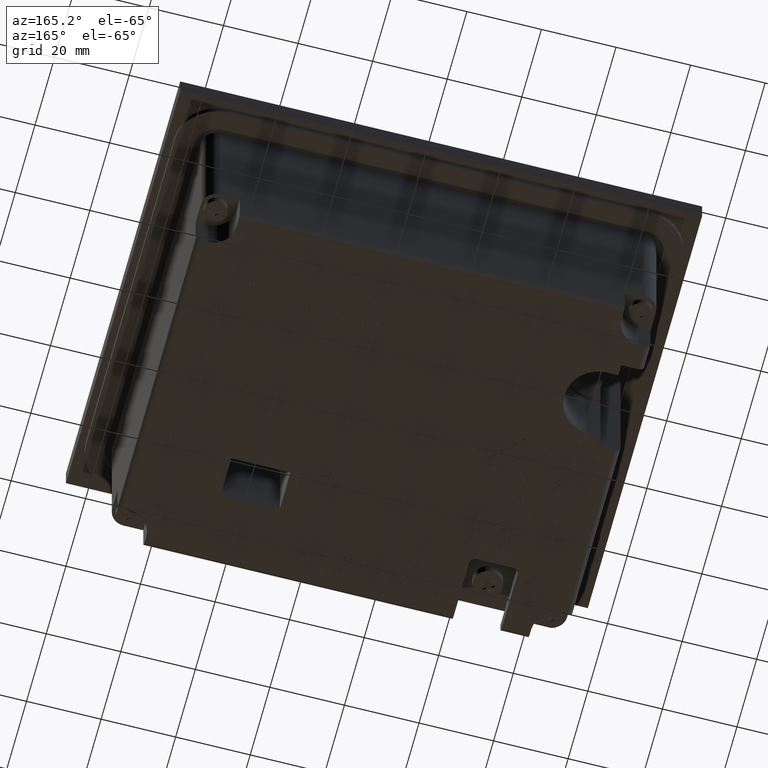
[diagram: clean part render]
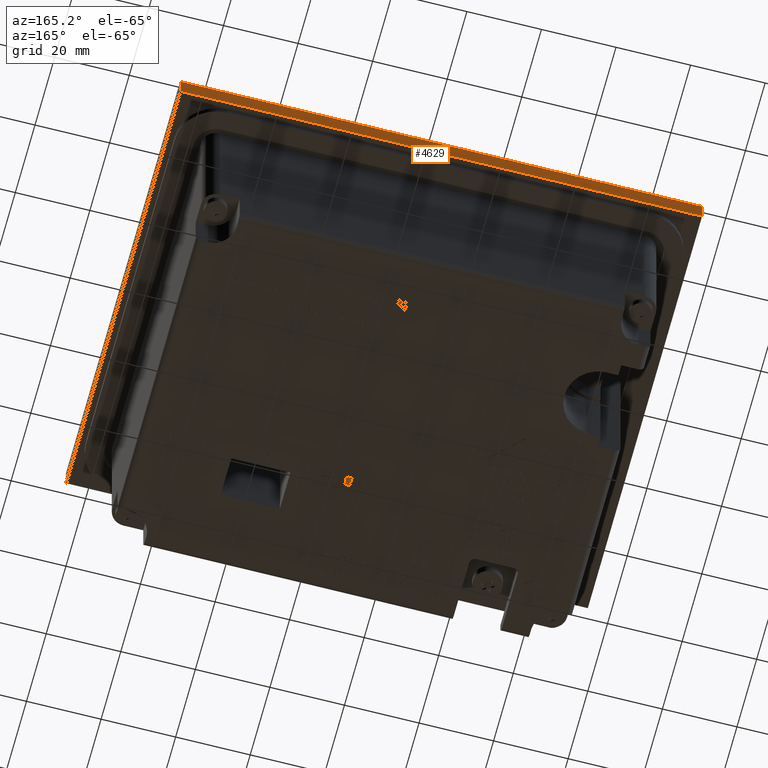
[diagram: same view with one face highlighted and labeled with its STEP entity id]
A machine part, auxiliary view. The second image highlights one B-rep face of the part: STEP entity #4629.
In plain terms, the highlighted planar face has unit normal (0, -1, 0).
Its self-contained STEP definition (entity closure, byte-faithful):
#4629=ADVANCED_FACE('',(#8919),#6862,.F.);
#6862=PLANE('',#44773);
#8919=FACE_OUTER_BOUND('',#11198,.T.);
#11198=EDGE_LOOP('',(#15980,#15981,#15982,#15983));
#15980=ORIENTED_EDGE('',*,*,#29702,.T.);
#15981=ORIENTED_EDGE('',*,*,#29711,.F.);
#15982=ORIENTED_EDGE('',*,*,#29716,.F.);
#15983=ORIENTED_EDGE('',*,*,#29714,.T.);
#25444=VERTEX_POINT('',#59707);
#25446=VERTEX_POINT('',#59710);
#25453=VERTEX_POINT('',#59726);
#25455=VERTEX_POINT('',#59734);
#29702=EDGE_CURVE('',#25446,#25444,#35118,.T.);
#29711=EDGE_CURVE('',#25453,#25444,#35127,.T.);
#29714=EDGE_CURVE('',#25455,#25446,#35130,.T.);
#29716=EDGE_CURVE('',#25455,#25453,#35132,.T.);
#35118=LINE('',#59709,#40026);
#35127=LINE('',#59727,#40035);
#35130=LINE('',#59733,#40038);
#35132=LINE('',#59737,#40040);
#40026=VECTOR('',#49138,1.);
#40035=VECTOR('',#49149,1.);
#40038=VECTOR('',#49156,1.);
#40040=VECTOR('',#49160,1.);
#44773=AXIS2_PLACEMENT_3D('',#59738,#49161,#49162);
#49138=DIRECTION('',(-1.,0.,0.));
#49149=DIRECTION('',(0.,0.,1.));
#49156=DIRECTION('',(0.,0.,1.));
#49160=DIRECTION('',(-1.,0.,0.));
#49161=DIRECTION('',(0.,1.,0.));
#49162=DIRECTION('',(0.,0.,1.));
#59707=CARTESIAN_POINT('',(-70.,-58.,0.));
#59709=CARTESIAN_POINT('',(70.,-58.,0.));
#59710=CARTESIAN_POINT('',(70.,-58.,0.));
#59726=CARTESIAN_POINT('',(-70.,-58.,-6.));
#59727=CARTESIAN_POINT('',(-70.,-58.,-6.));
#59733=CARTESIAN_POINT('',(70.,-58.,-6.));
#59734=CARTESIAN_POINT('',(70.,-58.,-6.));
#59737=CARTESIAN_POINT('',(70.,-58.,-6.));
#59738=CARTESIAN_POINT('',(70.,-58.,-6.));